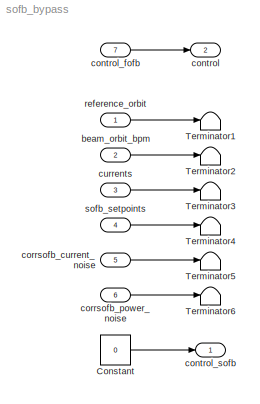
MODEL sofb_bypass
KIND model
BLOCK [Constant] Constant
  SID = 27
  SampleTime = Ts*s2ffactor
  Value = 0
BLOCK [Terminator] Terminator1
  SID = 14
BLOCK [Terminator] Terminator2
  SID = 15
BLOCK [Terminator] Terminator3
  SID = 23
BLOCK [Terminator] Terminator4
  SID = 24
BLOCK [Terminator] Terminator5
  SID = 25
BLOCK [Terminator] Terminator6
  SID = 26
BLOCK [Inport] beam_orbit_bpm
  IconDisplay = Port number
  Port = 2
  PortDimensions = nbpm
  SID = 2
  SampleTime = Ts
BLOCK [Outport] control
  IconDisplay = Port number
  Port = 2
  SID = 22
BLOCK [Inport] control_fofb
  IconDisplay = Port number
  Port = 7
  PortDimensions = ncorrfofb
  SID = 7
BLOCK [Outport] control_sofb
  IconDisplay = Port number
  SID = 21
BLOCK [Inport] corrsofb_current_noise
  IconDisplay = Port number
  Port = 5
  PortDimensions = ncorrsofb
  SID = 5
  SampleTime = 0
BLOCK [Inport] corrsofb_power_noise
  IconDisplay = Port number
  Port = 6
  PortDimensions = ncorrsofb
  SID = 6
  SampleTime = 0
BLOCK [Inport] currents
  IconDisplay = Port number
  Port = 3
  PortDimensions = ncorrmagnet
  SID = 3
  SampleTime = 0
BLOCK [Inport] reference_orbit
  IconDisplay = Port number
  PortDimensions = nbpm
  SID = 1
  SampleTime = Ts
BLOCK [Inport] sofb_setpoints
  IconDisplay = Port number
  Port = 4
  PortDimensions = ncorrsofb
  SID = 4
  SampleTime = Ts*s2ffactor
LINE Constant:1 -> control_sofb:1
LINE beam_orbit_bpm:1 -> Terminator2:1
LINE control_fofb:1 -> control:1
LINE corrsofb_current_noise:1 -> Terminator5:1
LINE corrsofb_power_noise:1 -> Terminator6:1
LINE currents:1 -> Terminator3:1
LINE reference_orbit:1 -> Terminator1:1
LINE sofb_setpoints:1 -> Terminator4:1
